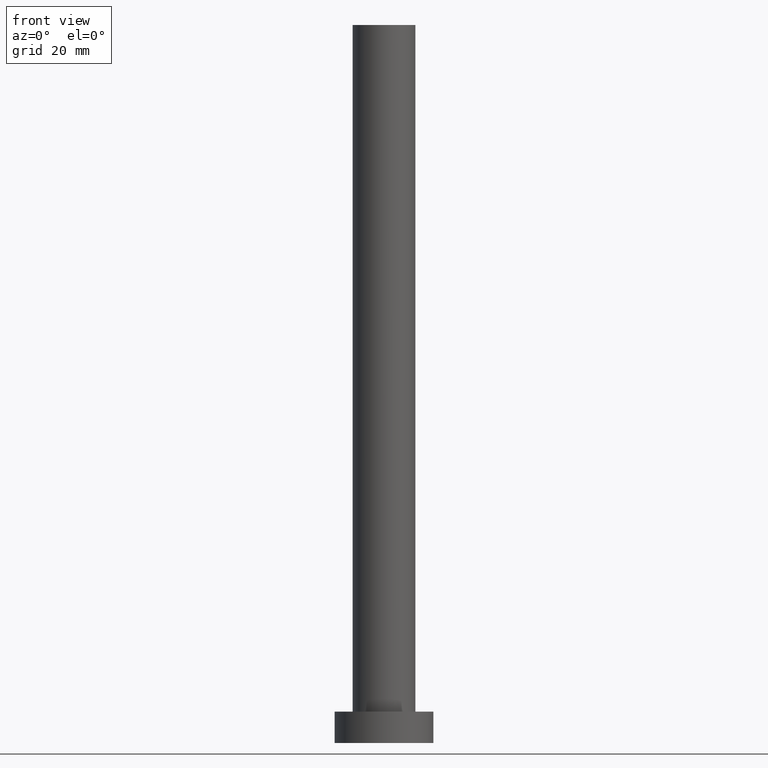
[diagram: clean part render]
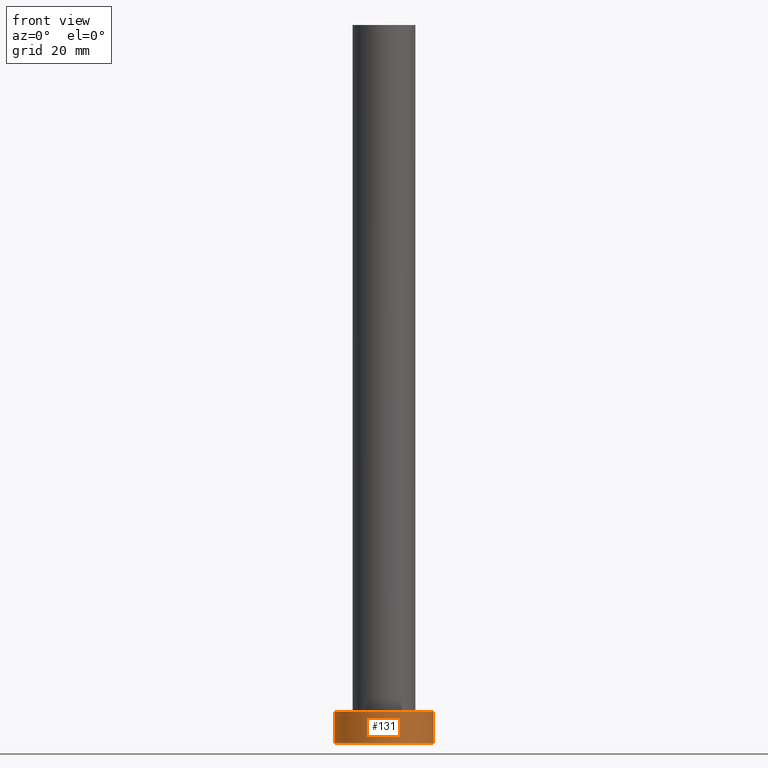
[diagram: same view with one face highlighted and labeled with its STEP entity id]
A machine part, front view. The second image highlights one B-rep face of the part: STEP entity #131.
In plain terms, the highlighted cylindrical surface (partial cylindrical patch) has radius 11 mm, axis along (-0, -0, -1).
Its self-contained STEP definition (entity closure, byte-faithful):
#7 = ORIENTED_EDGE ( 'NONE', *, *, #63, .T. ) ;
#8 = CARTESIAN_POINT ( 'NONE',  ( 11.00000000000000000, 1.347111479062088405E-15, 7.000000000000000000 ) ) ;
#10 = CARTESIAN_POINT ( 'NONE',  ( 11.00000000000000000, 1.347111479062088405E-15, 0.000000000000000000 ) ) ;
#13 = CARTESIAN_POINT ( 'NONE',  ( 0.000000000000000000, 0.000000000000000000, 7.000000000000000000 ) ) ;
#27 = CARTESIAN_POINT ( 'NONE',  ( -11.00000000000000000, 0.000000000000000000, 0.000000000000000000 ) ) ;
#28 = DIRECTION ( 'NONE',  ( 1.000000000000000000, 0.000000000000000000, 0.000000000000000000 ) ) ;
#59 = EDGE_CURVE ( 'NONE', #111, #161, #246, .T. ) ;
#63 = EDGE_CURVE ( 'NONE', #111, #84, #167, .T. ) ;
#66 = CARTESIAN_POINT ( 'NONE',  ( 0.000000000000000000, 0.000000000000000000, 7.000000000000000000 ) ) ;
#69 = CARTESIAN_POINT ( 'NONE',  ( 0.000000000000000000, 0.000000000000000000, 0.000000000000000000 ) ) ;
#70 = CYLINDRICAL_SURFACE ( 'NONE', #78, 11.00000000000000000 ) ;
#73 = AXIS2_PLACEMENT_3D ( 'NONE', #69, #139, #28 ) ;
#78 = AXIS2_PLACEMENT_3D ( 'NONE', #13, #227, #207 ) ;
#84 = VERTEX_POINT ( 'NONE', #27 ) ;
#94 = VERTEX_POINT ( 'NONE', #10 ) ;
#101 = VECTOR ( 'NONE', #104, 1000.000000000000000 ) ;
#102 = VECTOR ( 'NONE', #113, 1000.000000000000000 ) ;
#104 = DIRECTION ( 'NONE',  ( -0.000000000000000000, -0.000000000000000000, -1.000000000000000000 ) ) ;
#107 = DIRECTION ( 'NONE',  ( 1.000000000000000000, 0.000000000000000000, 0.000000000000000000 ) ) ;
#111 = VERTEX_POINT ( 'NONE', #136 ) ;
#113 = DIRECTION ( 'NONE',  ( -0.000000000000000000, -0.000000000000000000, -1.000000000000000000 ) ) ;
#131 = ADVANCED_FACE ( 'NONE', ( #138 ), #70, .T. ) ;
#136 = CARTESIAN_POINT ( 'NONE',  ( -11.00000000000000000, 0.000000000000000000, 7.000000000000000000 ) ) ;
#138 = FACE_OUTER_BOUND ( 'NONE', #179, .T. ) ;
#139 = DIRECTION ( 'NONE',  ( 0.000000000000000000, 0.000000000000000000, 1.000000000000000000 ) ) ;
#160 = AXIS2_PLACEMENT_3D ( 'NONE', #66, #230, #107 ) ;
#161 = VERTEX_POINT ( 'NONE', #185 ) ;
#166 = CARTESIAN_POINT ( 'NONE',  ( -11.00000000000000000, 0.000000000000000000, 7.000000000000000000 ) ) ;
#167 = LINE ( 'NONE', #166, #101 ) ;
#168 = ORIENTED_EDGE ( 'NONE', *, *, #59, .F. ) ;
#177 = EDGE_CURVE ( 'NONE', #84, #94, #228, .T. ) ;
#179 = EDGE_LOOP ( 'NONE', ( #247, #168, #7, #201 ) ) ;
#184 = LINE ( 'NONE', #8, #102 ) ;
#185 = CARTESIAN_POINT ( 'NONE',  ( 11.00000000000000000, 1.347111479062088405E-15, 7.000000000000000000 ) ) ;
#189 = EDGE_CURVE ( 'NONE', #161, #94, #184, .T. ) ;
#201 = ORIENTED_EDGE ( 'NONE', *, *, #177, .T. ) ;
#207 = DIRECTION ( 'NONE',  ( -1.000000000000000000, 0.000000000000000000, 0.000000000000000000 ) ) ;
#227 = DIRECTION ( 'NONE',  ( -0.000000000000000000, -0.000000000000000000, -1.000000000000000000 ) ) ;
#228 = CIRCLE ( 'NONE', #73, 11.00000000000000000 ) ;
#230 = DIRECTION ( 'NONE',  ( 0.000000000000000000, 0.000000000000000000, 1.000000000000000000 ) ) ;
#246 = CIRCLE ( 'NONE', #160, 11.00000000000000000 ) ;
#247 = ORIENTED_EDGE ( 'NONE', *, *, #189, .F. ) ;